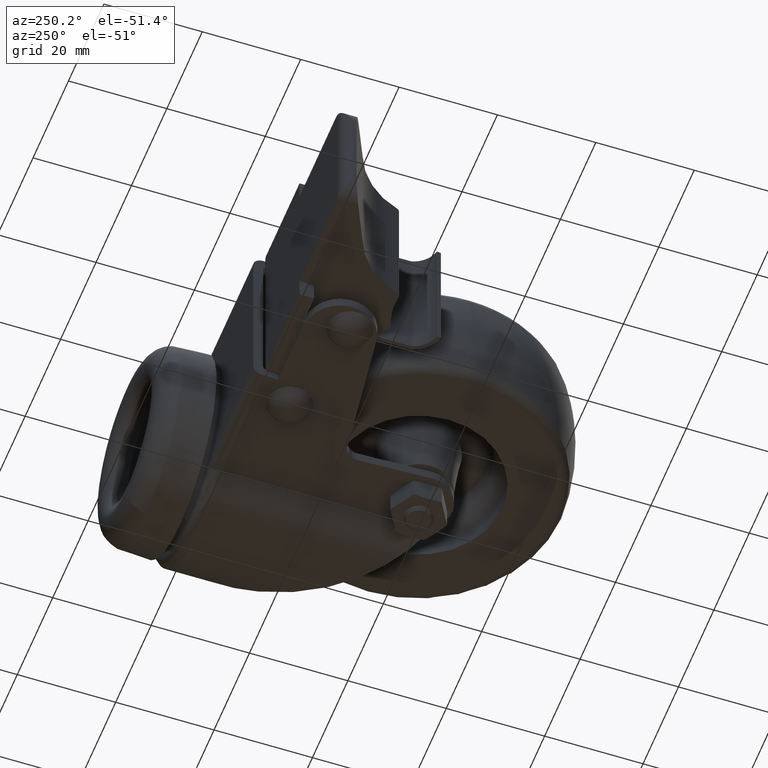
[diagram: clean part render]
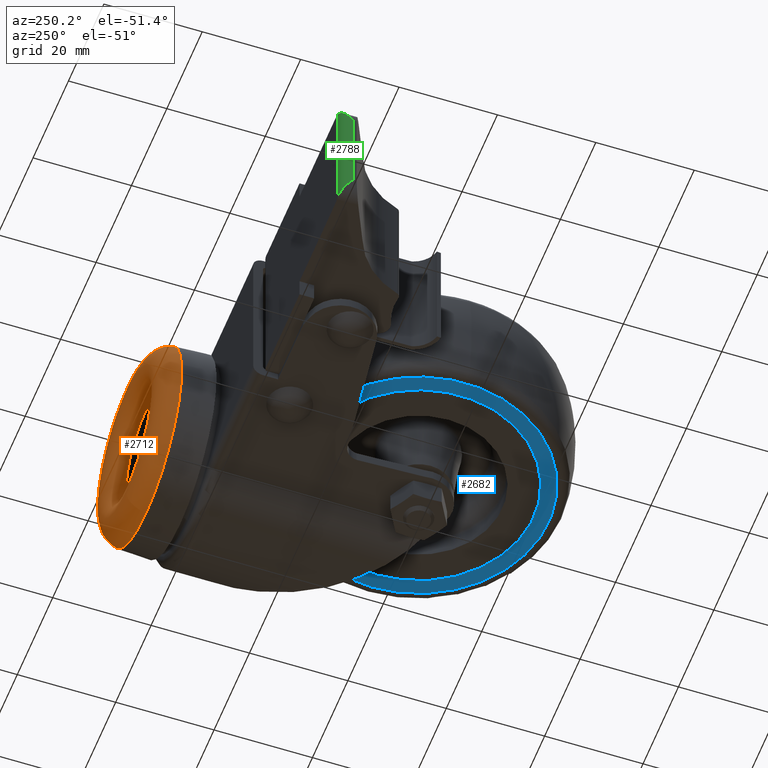
[diagram: same view with three faces highlighted in distinct colors, each labeled with its STEP entity id]
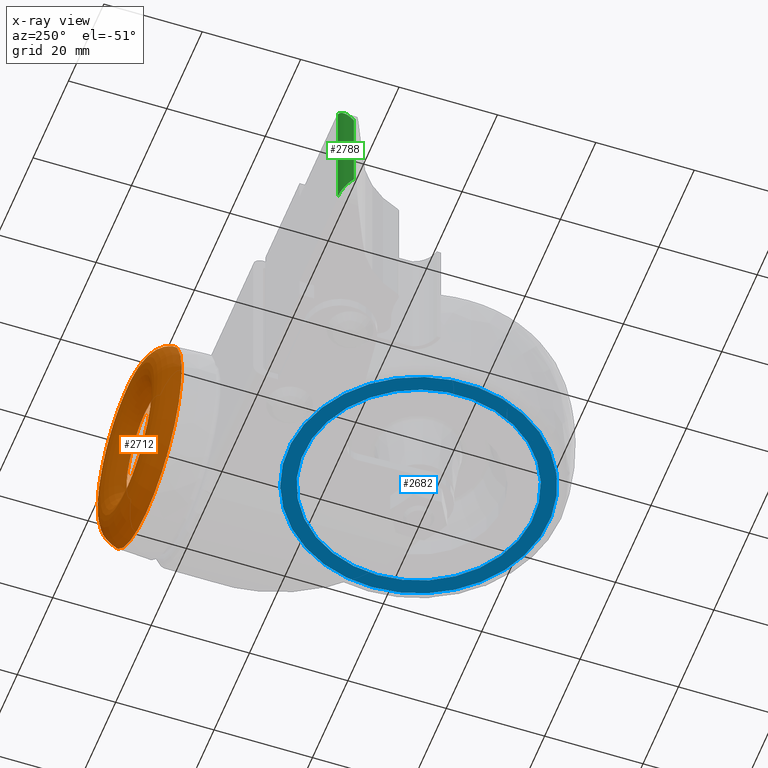
[diagram: x-ray of the same camera — body ghosted, the three highlighted faces saturated]
A machine part, auxiliary view with three faces highlighted in distinct colors.
The next image is the same camera in x-ray (body ghosted, the three faces saturated) — at least one of them is partly hidden behind the body in this view.
Their STEP definitions:

[orange] entity #2712 — the highlighted toroidal blend (fillet) surface has major radius 15.2308 mm and minor (blend) radius 5 mm.
#410=TOROIDAL_SURFACE('',#2979,15.2308147612647,5.);
#551=FACE_BOUND('',#872,.T.);
#640=FACE_OUTER_BOUND('',#871,.T.);
#871=EDGE_LOOP('',(#1998));
#872=EDGE_LOOP('',(#1999));
#1120=CIRCLE('',#2978,20.1412779943022);
#1121=CIRCLE('',#2980,10.3812103649611);
#1311=VERTEX_POINT('',#4551);
#1312=VERTEX_POINT('',#4554);
#1582=EDGE_CURVE('',#1311,#1311,#1120,.T.);
#1583=EDGE_CURVE('',#1312,#1312,#1121,.T.);
#1998=ORIENTED_EDGE('',*,*,#1583,.T.);
#1999=ORIENTED_EDGE('',*,*,#1582,.F.);
#2712=ADVANCED_FACE('',(#640,#551),#410,.T.);
#2978=AXIS2_PLACEMENT_3D('',#4552,#3490,#3491);
#2979=AXIS2_PLACEMENT_3D('',#4553,#3492,#3493);
#2980=AXIS2_PLACEMENT_3D('',#4555,#3494,#3495);
#3490=DIRECTION('center_axis',(0.,-1.,0.));
#3491=DIRECTION('ref_axis',(0.,0.,-1.));
#3492=DIRECTION('center_axis',(0.,-1.,0.));
#3493=DIRECTION('ref_axis',(0.,0.,-1.));
#3494=DIRECTION('center_axis',(0.,-1.,0.));
#3495=DIRECTION('ref_axis',(0.,0.,-1.));
#4551=CARTESIAN_POINT('',(17.9999999999998,48.9412546820754,-20.1412779943022));
#4552=CARTESIAN_POINT('Origin',(17.9999999999998,48.9412546820754,0.));
#4553=CARTESIAN_POINT('Origin',(17.9999999999998,47.9992616688389,0.));
#4554=CARTESIAN_POINT('',(17.9999999999998,49.2163636363636,-10.3812103649611));
#4555=CARTESIAN_POINT('Origin',(17.9999999999998,49.2163636363636,0.));

[blue] entity #2682 — the highlighted planar face has unit normal (0, 0, -1).
#522=FACE_BOUND('',#813,.T.);
#610=FACE_OUTER_BOUND('',#812,.T.);
#812=EDGE_LOOP('',(#1871));
#813=EDGE_LOOP('',(#1872));
#1069=CIRCLE('',#2893,26.5);
#1070=CIRCLE('',#2895,23.3715);
#1227=VERTEX_POINT('',#4158);
#1228=VERTEX_POINT('',#4161);
#1488=EDGE_CURVE('',#1227,#1227,#1069,.T.);
#1489=EDGE_CURVE('',#1228,#1228,#1070,.T.);
#1871=ORIENTED_EDGE('',*,*,#1488,.F.);
#1872=ORIENTED_EDGE('',*,*,#1489,.T.);
#2559=PLANE('',#2894);
#2682=ADVANCED_FACE('',(#610,#522),#2559,.T.);
#2893=AXIS2_PLACEMENT_3D('',#4159,#3291,#3292);
#2894=AXIS2_PLACEMENT_3D('',#4160,#3293,#3294);
#2895=AXIS2_PLACEMENT_3D('',#4162,#3295,#3296);
#3291=DIRECTION('center_axis',(1.,0.,0.));
#3292=DIRECTION('ref_axis',(0.,0.,-1.));
#3293=DIRECTION('center_axis',(-1.,0.,0.));
#3294=DIRECTION('ref_axis',(0.,0.,1.));
#3295=DIRECTION('center_axis',(1.,0.,0.));
#3296=DIRECTION('ref_axis',(0.,0.,-1.));
#4158=CARTESIAN_POINT('',(2.,0.,-26.5));
#4159=CARTESIAN_POINT('Origin',(2.,0.,0.));
#4160=CARTESIAN_POINT('Origin',(2.,26.5,0.));
#4161=CARTESIAN_POINT('',(2.,0.,-23.3715));
#4162=CARTESIAN_POINT('Origin',(2.,0.,0.));

[green] entity #2788 — the highlighted cylindrical surface (edge-blend (fillet) strip) has radius 2.4 mm, axis along (0, 0, 1).
#121=LINE('',#4907,#256);
#126=LINE('',#4918,#261);
#256=VECTOR('',#3787,25.3321211119294);
#261=VECTOR('',#3796,18.);
#326=B_SPLINE_CURVE_WITH_KNOTS('',3,(#4826,#4827,#4828,#4829,#4830,#4831,
#4832,#4833,#4834,#4835),.UNSPECIFIED.,.F.,.F.,(4,2,2,2,4),(-0.505584467425991,
-0.403413624771863,-0.301242782117734,-0.150621391058867,0.),
 .UNSPECIFIED.);
#327=B_SPLINE_CURVE_WITH_KNOTS('',3,(#4846,#4847,#4848,#4849,#4850,#4851,
#4852,#4853,#4854,#4855),.UNSPECIFIED.,.F.,.F.,(4,2,2,2,4),(1.24016087610739,
1.34233171876152,1.44450256141565,1.59512395247451,1.74574534353338),
 .UNSPECIFIED.);
#489=CYLINDRICAL_SURFACE('',#3104,2.4);
#716=FACE_OUTER_BOUND('',#976,.T.);
#976=EDGE_LOOP('',(#2288,#2289,#2290,#2291));
#1367=VERTEX_POINT('',#4824);
#1368=VERTEX_POINT('',#4825);
#1372=VERTEX_POINT('',#4844);
#1373=VERTEX_POINT('',#4845);
#1678=EDGE_CURVE('',#1367,#1368,#326,.F.);
#1683=EDGE_CURVE('',#1372,#1373,#327,.T.);
#1703=EDGE_CURVE('',#1372,#1368,#121,.T.);
#1709=EDGE_CURVE('',#1373,#1367,#126,.T.);
#2288=ORIENTED_EDGE('',*,*,#1683,.F.);
#2289=ORIENTED_EDGE('',*,*,#1703,.T.);
#2290=ORIENTED_EDGE('',*,*,#1678,.F.);
#2291=ORIENTED_EDGE('',*,*,#1709,.F.);
#2788=ADVANCED_FACE('',(#716),#489,.T.);
#3104=AXIS2_PLACEMENT_3D('',#4917,#3794,#3795);
#3787=DIRECTION('',(0.,0.,-1.));
#3794=DIRECTION('center_axis',(0.,0.,1.));
#3795=DIRECTION('ref_axis',(-1.,0.,0.));
#3796=DIRECTION('',(0.,0.,-1.));
#4824=CARTESIAN_POINT('',(-28.5,9.5,-9.));
#4825=CARTESIAN_POINT('',(-26.1,11.9,-12.6660605559647));
#4826=CARTESIAN_POINT('Ctrl Pts',(-26.1,11.9,-12.6660605559647));
#4827=CARTESIAN_POINT('Ctrl Pts',(-26.4121370801866,11.9,-12.5298327657592));
#4828=CARTESIAN_POINT('Ctrl Pts',(-26.7223641823109,11.8363094282212,-12.3439227475991));
#4829=CARTESIAN_POINT('Ctrl Pts',(-27.2656516866592,11.6182387253305,-11.9106513938517));
#4830=CARTESIAN_POINT('Ctrl Pts',(-27.4993229574283,11.4648518062545,-11.6635569684064));
#4831=CARTESIAN_POINT('Ctrl Pts',(-27.9503745533264,11.0696463151323,-11.0716037944716));
#4832=CARTESIAN_POINT('Ctrl Pts',(-28.1632517700923,10.7733734228489,-10.6657443184599));
#4833=CARTESIAN_POINT('Ctrl Pts',(-28.43798356748,10.1421232498998,-9.82849330912245));
#4834=CARTESIAN_POINT('Ctrl Pts',(-28.5,9.80745462703536,-9.39692221674078));
#4835=CARTESIAN_POINT('Ctrl Pts',(-28.5,9.5,-9.));
#4844=CARTESIAN_POINT('',(-26.1,11.9,12.6660605559647));
#4845=CARTESIAN_POINT('',(-28.5,9.5,9.));
#4846=CARTESIAN_POINT('Ctrl Pts',(-26.1,11.9,12.6660605559647));
#4847=CARTESIAN_POINT('Ctrl Pts',(-26.4121370801866,11.9,12.5298327657592));
#4848=CARTESIAN_POINT('Ctrl Pts',(-26.7223641823109,11.8363094282212,12.3439227475991));
#4849=CARTESIAN_POINT('Ctrl Pts',(-27.2656516866592,11.6182387253305,11.9106513938517));
#4850=CARTESIAN_POINT('Ctrl Pts',(-27.4993229574283,11.4648518062545,11.6635569684064));
#4851=CARTESIAN_POINT('Ctrl Pts',(-27.9503745533264,11.0696463151323,11.0716037944716));
#4852=CARTESIAN_POINT('Ctrl Pts',(-28.1632517700923,10.7733734228489,10.6657443184599));
#4853=CARTESIAN_POINT('Ctrl Pts',(-28.43798356748,10.1421232498998,9.82849330912245));
#4854=CARTESIAN_POINT('Ctrl Pts',(-28.5,9.80745462703536,9.39692221674078));
#4855=CARTESIAN_POINT('Ctrl Pts',(-28.5,9.5,9.));
#4907=CARTESIAN_POINT('',(-26.1,11.9,13.));
#4917=CARTESIAN_POINT('Origin',(-26.1,9.5,13.));
#4918=CARTESIAN_POINT('',(-28.5,9.5,13.));